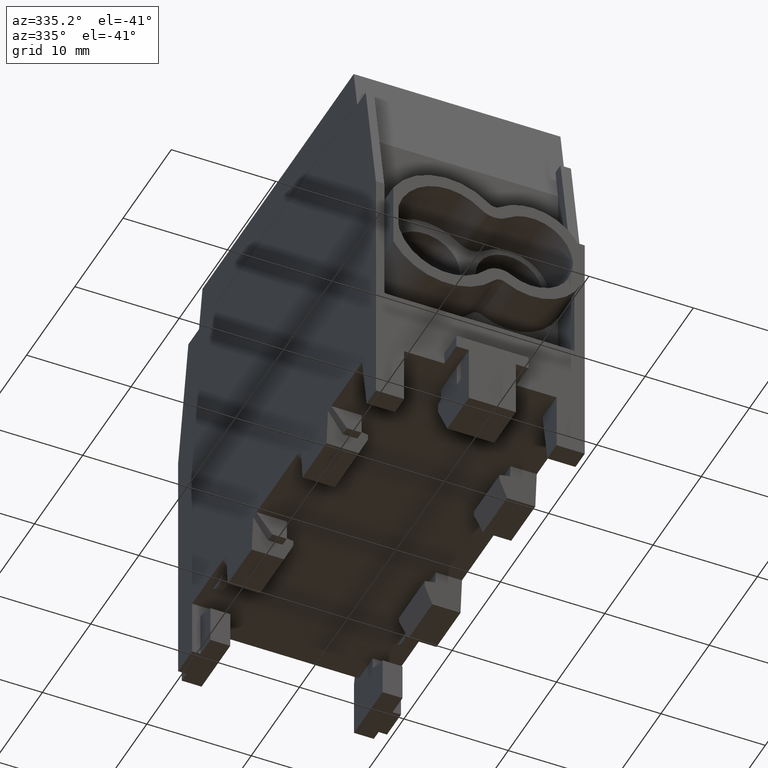
[diagram: clean part render]
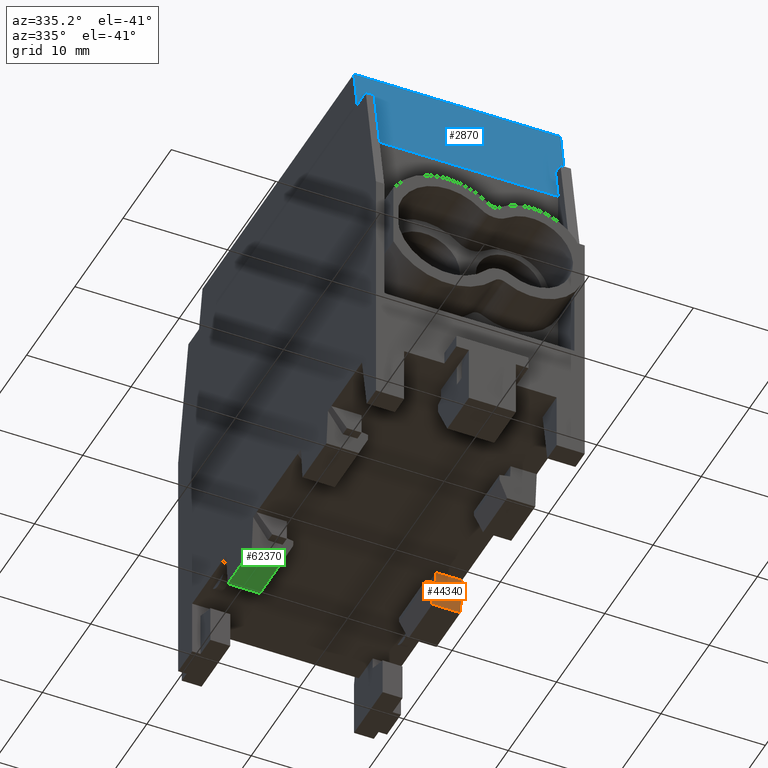
[diagram: same view with three faces highlighted in distinct colors, each labeled with its STEP entity id]
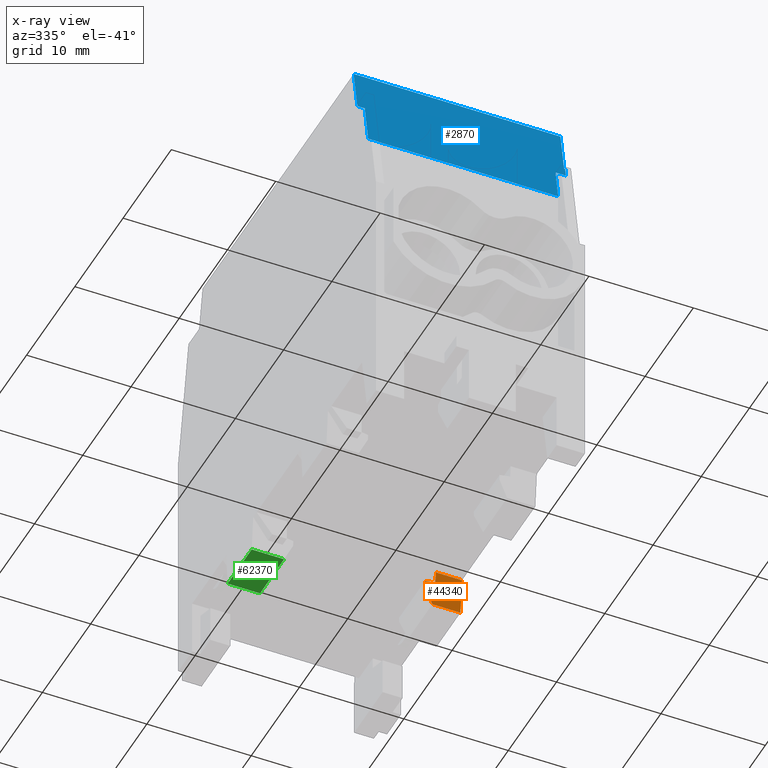
[diagram: x-ray of the same camera — body ghosted, the three highlighted faces saturated]
A machine part, auxiliary view with three faces highlighted in distinct colors.
The next image is the same camera in x-ray (body ghosted, the three faces saturated) — at least one of them is partly hidden behind the body in this view.
Their STEP definitions:

[orange] entity #44340 — the highlighted planar face has unit normal (-0, -0.9962, -0.0872).
#40090=CARTESIAN_POINT('',(8.39999999999999,5.25611963054814,
-39.245359338705));
#40100=VERTEX_POINT('',#40090);
#40130=CARTESIAN_POINT('',(8.39999999999999,1.82259559241017,
-7.105427357601E-15));
#40140=DIRECTION('',(-5.55111512312578E-17,-0.0871557427476589,
0.996194698091746));
#40150=VECTOR('',#40140,1.);
#40160=LINE('',#40130,#40150);
#40170=CARTESIAN_POINT('',(8.39999999999999,4.9499093082074,
-35.745359338705));
#40180=VERTEX_POINT('',#40170);
#40190=EDGE_CURVE('',#40100,#40180,#40160,.T.);
#43560=CARTESIAN_POINT('',(5.89999999999999,5.04614683808592,
-36.845359338705));
#43570=DIRECTION('',(-1.76721111597388E-16,-0.087155742747659,
0.996194698091746));
#43580=VECTOR('',#43570,1.);
#43590=LINE('',#43560,#43580);
#43600=CARTESIAN_POINT('',(5.89999999999999,5.04614683808592,
-36.845359338705));
#43610=VERTEX_POINT('',#43600);
#43620=CARTESIAN_POINT('',(5.89999999999999,4.9499093082074,
-35.745359338705));
#43630=VERTEX_POINT('',#43620);
#43640=EDGE_CURVE('',#43610,#43630,#43590,.T.);
#43890=CARTESIAN_POINT('',(5.89999999999999,4.25,-27.745359338705));
#43900=DIRECTION('',(-2.71661457091403E-16,-0.996194698091746,
-0.0871557427476589));
#43910=DIRECTION('',(7.94904926232374E-17,0.0871557427476589,
-0.996194698091746));
#43920=AXIS2_PLACEMENT_3D('',#43890,#43900,#43910);
#43930=PLANE('',#43920);
#43940=CARTESIAN_POINT('',(-1.60000000000001,5.25611963054813,
-39.2453593387049));
#43950=DIRECTION('',(1.,6.10545446523883E-16,-1.00955320455483E-14));
#43960=VECTOR('',#43950,1.);
#43970=LINE('',#43940,#43960);
#43980=CARTESIAN_POINT('',(5.70376192905079,5.25611963054814,
-39.245359338705));
#43990=VERTEX_POINT('',#43980);
#44000=EDGE_CURVE('',#43990,#40100,#43970,.T.);
#44010=ORIENTED_EDGE('',*,*,#44000,.T.);
#44020=CARTESIAN_POINT('',(-12.5966496776322,1.82259559241017,
-5.74670879972252E-17));
#44030=DIRECTION('',(0.421295957875004,0.0790435663209857,
-0.903472097245644));
#44040=VECTOR('',#44030,1.);
#44050=LINE('',#44020,#44040);
#44060=CARTESIAN_POINT('',(4.9,5.10531778173463,-37.5216863194134));
#44070=VERTEX_POINT('',#44060);
#44080=EDGE_CURVE('',#44070,#43990,#44050,.T.);
#44090=ORIENTED_EDGE('',*,*,#44080,.T.);
#44100=CARTESIAN_POINT('',(4.89999999999999,5.10531778173462,
-37.5216863194134));
#44110=DIRECTION('',(-7.94904926232374E-17,-0.0871557427476592,
0.996194698091746));
#44120=VECTOR('',#44110,1.);
#44130=LINE('',#44100,#44120);
#44140=CARTESIAN_POINT('',(4.89999999999999,5.06157344997166,
-37.0216863194134));
#44150=VERTEX_POINT('',#44140);
#44160=EDGE_CURVE('',#44070,#44150,#44130,.T.);
#44170=ORIENTED_EDGE('',*,*,#44160,.F.);
#44180=CARTESIAN_POINT('',(5.89999999999999,5.04614683808592,
-36.845359338705));
#44190=DIRECTION('',(-0.984694123715651,0.0151904940727358,
-0.173628141756145));
#44200=VECTOR('',#44190,1.);
#44210=LINE('',#44180,#44200);
#44220=EDGE_CURVE('',#43610,#44150,#44210,.T.);
#44230=ORIENTED_EDGE('',*,*,#44220,.T.);
#44240=ORIENTED_EDGE('',*,*,#43640,.F.);
#44250=CARTESIAN_POINT('',(-1.60000000000001,4.9499093082074,
-35.745359338705));
#44260=DIRECTION('',(1.,-2.77555756156289E-16,5.55111512312576E-17));
#44270=VECTOR('',#44260,1.);
#44280=LINE('',#44250,#44270);
#44290=EDGE_CURVE('',#43630,#40180,#44280,.T.);
#44300=ORIENTED_EDGE('',*,*,#44290,.F.);
#44310=ORIENTED_EDGE('',*,*,#40190,.T.);
#44320=EDGE_LOOP('',(#44310,#44300,#44240,#44230,#44170,#44090,#44010));
#44330=FACE_OUTER_BOUND('',#44320,.T.);
#44340=ADVANCED_FACE('',(#44330),#43930,.T.);

[blue] entity #2870 — the highlighted planar face has unit normal (0, 0.9848, -0.1736).
#2000=CARTESIAN_POINT('',(-11.5,-15.9657768254765,-2.59806298337114));
#2010=DIRECTION('',(9.63941025150131E-18,0.984807753012208,
-0.17364817766693));
#2020=DIRECTION('',(5.46678121111758E-17,-0.17364817766693,
-0.984807753012208));
#2030=AXIS2_PLACEMENT_3D('',#2000,#2010,#2020);
#2040=PLANE('',#2030);
#2050=CARTESIAN_POINT('',(-1.60000000000001,-17.15,-9.31412634341614));
#2060=DIRECTION('',(-1.,4.93038065763132E-32,-5.55111512312577E-17));
#2070=VECTOR('',#2060,1.);
#2080=LINE('',#2050,#2070);
#2090=CARTESIAN_POINT('',(7.39999999999999,-17.15,-9.31412634341614));
#2100=VERTEX_POINT('',#2090);
#2110=CARTESIAN_POINT('',(-10.8,-17.15,-9.31412634341614));
#2120=VERTEX_POINT('',#2110);
#2130=EDGE_CURVE('',#2100,#2120,#2080,.T.);
#2140=ORIENTED_EDGE('',*,*,#2130,.F.);
#2150=CARTESIAN_POINT('',(-10.8,-15.5076682239283,-5.21567886662658E-15)
);
#2160=DIRECTION('',(-1.30344486877324E-17,0.17364817766693,
0.984807753012208));
#2170=VECTOR('',#2160,1.);
#2180=LINE('',#2150,#2170);
#2190=CARTESIAN_POINT('',(-10.8,-16.4325665988531,-5.24535933870501));
#2200=VERTEX_POINT('',#2190);
#2210=EDGE_CURVE('',#2120,#2200,#2180,.T.);
#2220=ORIENTED_EDGE('',*,*,#2210,.F.);
#2230=CARTESIAN_POINT('',(-1.60000000000001,-16.4325665988531,
-5.24535933870501));
#2240=DIRECTION('',(-1.,-1.9548960192294E-17,-1.66378813762245E-16));
#2250=VECTOR('',#2240,1.);
#2260=LINE('',#2230,#2250);
#2270=CARTESIAN_POINT('',(-11.5,-16.4325665988531,-5.24535933870501));
#2280=VERTEX_POINT('',#2270);
#2290=EDGE_CURVE('',#2200,#2280,#2260,.T.);
#2300=ORIENTED_EDGE('',*,*,#2290,.F.);
#2310=CARTESIAN_POINT('',(-11.5,-15.5076682239283,-5.25453667248846E-15)
);
#2320=DIRECTION('',(-5.46678121111758E-17,0.17364817766693,
0.984807753012208));
#2330=VECTOR('',#2320,1.);
#2340=LINE('',#2310,#2330);
#2350=CARTESIAN_POINT('',(-11.5,-15.6743605818067,-0.945359338705003));
#2360=VERTEX_POINT('',#2350);
#2370=EDGE_CURVE('',#2280,#2360,#2340,.T.);
#2380=ORIENTED_EDGE('',*,*,#2370,.F.);
#2390=CARTESIAN_POINT('',(-1.60000000000001,-15.6743605818067,
-0.945359338705003));
#2400=DIRECTION('',(-1.,4.93038065763132E-32,-5.55111512312577E-17));
#2410=VECTOR('',#2400,1.);
#2420=LINE('',#2390,#2410);
#2430=CARTESIAN_POINT('',(8.29999999999999,-15.6743605818067,
-0.945359338705002));
#2440=VERTEX_POINT('',#2430);
#2450=EDGE_CURVE('',#2440,#2360,#2420,.T.);
#2460=ORIENTED_EDGE('',*,*,#2450,.T.);
#2470=CARTESIAN_POINT('',(8.29999999999999,-15.5076682239283,
-4.15541587810956E-15));
#2480=DIRECTION('',(5.46678121111758E-17,-0.17364817766693,
-0.984807753012208));
#2490=VECTOR('',#2480,1.);
#2500=LINE('',#2470,#2490);
#2510=CARTESIAN_POINT('',(8.29999999999999,-16.4325665988531,
-5.245359338705));
#2520=VERTEX_POINT('',#2510);
#2530=EDGE_CURVE('',#2440,#2520,#2500,.T.);
#2540=ORIENTED_EDGE('',*,*,#2530,.F.);
#2550=CARTESIAN_POINT('',(-1.60000000000001,-16.4325665988531,
-5.245359338705));
#2560=DIRECTION('',(-1.,6.5684786575718E-32,-5.55111512312576E-17));
#2570=VECTOR('',#2560,1.);
#2580=LINE('',#2550,#2570);
#2590=CARTESIAN_POINT('',(8.39999999999999,-16.4325665988531,
-5.245359338705));
#2600=VERTEX_POINT('',#2590);
#2610=EDGE_CURVE('',#2600,#2520,#2580,.T.);
#2620=ORIENTED_EDGE('',*,*,#2610,.T.);
#2630=CARTESIAN_POINT('',(8.39999999999999,-15.5076682239283,
-4.14986476298643E-15));
#2640=DIRECTION('',(5.46678121111758E-17,-0.17364817766693,
-0.984807753012208));
#2650=VECTOR('',#2640,1.);
#2660=LINE('',#2630,#2650);
#2670=CARTESIAN_POINT('',(8.39999999999999,-16.5880955477101,
-6.12740783878239));
#2680=VERTEX_POINT('',#2670);
#2690=EDGE_CURVE('',#2600,#2680,#2660,.T.);
#2700=ORIENTED_EDGE('',*,*,#2690,.F.);
#2710=CARTESIAN_POINT('',(8.39999999999998,-16.5880955477102,
-6.12740783878239));
#2720=DIRECTION('',(-1.,2.77555756156289E-16,-5.55111512312576E-17));
#2730=VECTOR('',#2720,1.);
#2740=LINE('',#2710,#2730);
#2750=CARTESIAN_POINT('',(7.39999999999999,-16.5880955477101,
-6.12740783878239));
#2760=VERTEX_POINT('',#2750);
#2770=EDGE_CURVE('',#2680,#2760,#2740,.T.);
#2780=ORIENTED_EDGE('',*,*,#2770,.F.);
#2790=CARTESIAN_POINT('',(7.39999999999999,-15.5076682239283,
-4.20537591421769E-15));
#2800=DIRECTION('',(5.46678121111758E-17,-0.17364817766693,
-0.984807753012208));
#2810=VECTOR('',#2800,1.);
#2820=LINE('',#2790,#2810);
#2830=EDGE_CURVE('',#2760,#2100,#2820,.T.);
#2840=ORIENTED_EDGE('',*,*,#2830,.F.);
#2850=EDGE_LOOP('',(#2840,#2780,#2700,#2620,#2540,#2460,#2380,#2300,
#2220,#2140));
#2860=FACE_OUTER_BOUND('',#2850,.T.);
#2870=ADVANCED_FACE('',(#2860),#2040,.F.);

[green] entity #62370 — the highlighted planar face has unit normal (-0, -0, 1).
#33640=CARTESIAN_POINT('',(-11.6,5.25611963054814,-39.245359338705));
#33650=VERTEX_POINT('',#33640);
#33680=CARTESIAN_POINT('',(-11.6,1.19069148203261E-14,-39.245359338705))
;
#33690=DIRECTION('',(-1.70544636617791E-32,-1.,-5.80952514931359E-16));
#33700=VECTOR('',#33690,1.);
#33710=LINE('',#33680,#33700);
#33720=CARTESIAN_POINT('',(-11.6,10.2438803694519,-39.245359338705));
#33730=VERTEX_POINT('',#33720);
#33740=EDGE_CURVE('',#33730,#33650,#33710,.T.);
#49390=CARTESIAN_POINT('',(-8.50376192905079,10.2438803694519,
-39.245359338705));
#49400=VERTEX_POINT('',#49390);
#49680=CARTESIAN_POINT('',(-1.60000000000001,10.2438803694519,
-39.2453593387049));
#49690=DIRECTION('',(-1.,-2.92917939199214E-16,-6.57605532649422E-15));
#49700=VECTOR('',#49690,1.);
#49710=LINE('',#49680,#49700);
#49720=EDGE_CURVE('',#49400,#33730,#49710,.T.);
#62140=CARTESIAN_POINT('',(-8.5037619290508,11.25,-39.245359338705));
#62150=DIRECTION('',(-6.57605532649422E-15,-5.80952514931359E-16,1.));
#62160=DIRECTION('',(1.,-2.77555756156293E-16,6.57605532649422E-15));
#62170=AXIS2_PLACEMENT_3D('',#62140,#62150,#62160);
#62180=PLANE('',#62170);
#62190=ORIENTED_EDGE('',*,*,#49720,.F.);
#62200=ORIENTED_EDGE('',*,*,#33740,.F.);
#62210=CARTESIAN_POINT('',(-1.60000000000001,5.25611963054813,
-39.2453593387049));
#62220=DIRECTION('',(1.,-8.48029451511799E-16,6.57605532649422E-15));
#62230=VECTOR('',#62220,1.);
#62240=LINE('',#62210,#62230);
#62250=CARTESIAN_POINT('',(-8.5037619290508,5.25611963054814,
-39.245359338705));
#62260=VERTEX_POINT('',#62250);
#62270=EDGE_CURVE('',#33650,#62260,#62240,.T.);
#62280=ORIENTED_EDGE('',*,*,#62270,.F.);
#62290=CARTESIAN_POINT('',(-8.5037619290508,1.19069148203261E-14,
-39.245359338705));
#62300=DIRECTION('',(2.77555756156289E-16,1.,5.80952514931361E-16));
#62310=VECTOR('',#62300,1.);
#62320=LINE('',#62290,#62310);
#62330=EDGE_CURVE('',#62260,#49400,#62320,.T.);
#62340=ORIENTED_EDGE('',*,*,#62330,.F.);
#62350=EDGE_LOOP('',(#62340,#62280,#62200,#62190));
#62360=FACE_OUTER_BOUND('',#62350,.T.);
#62370=ADVANCED_FACE('',(#62360),#62180,.F.);